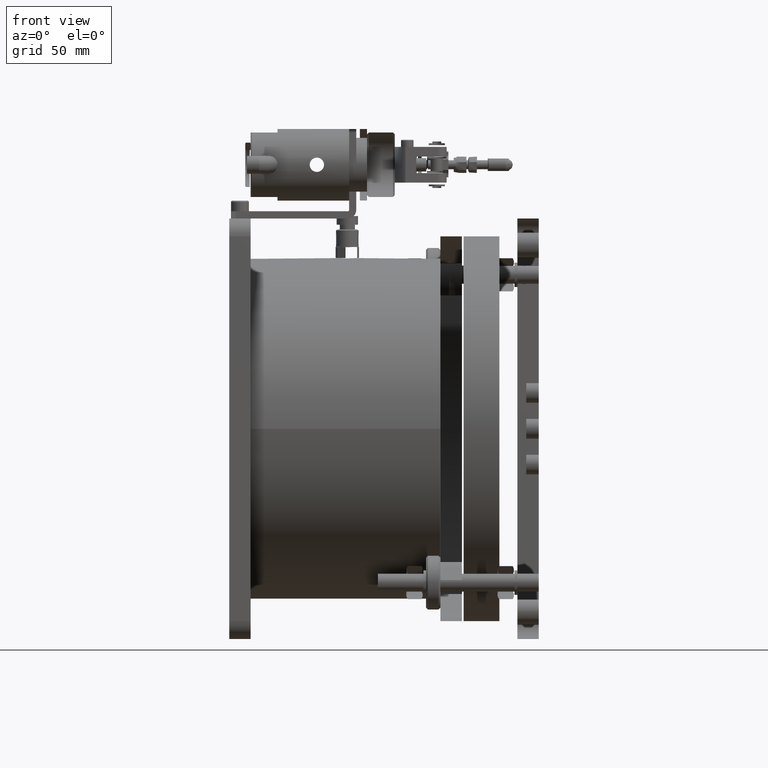
[diagram: clean part render]
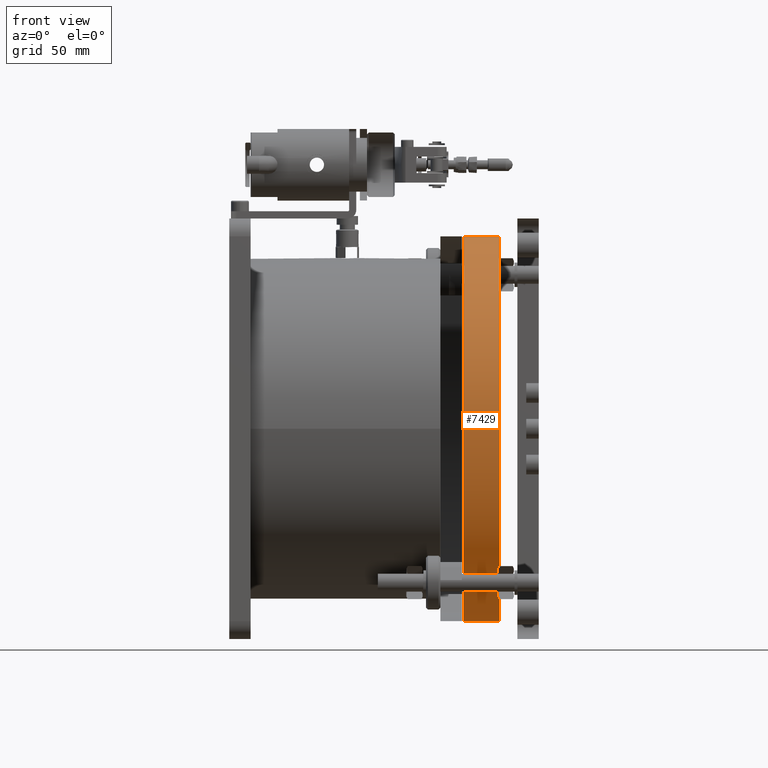
[diagram: same view with one face highlighted and labeled with its STEP entity id]
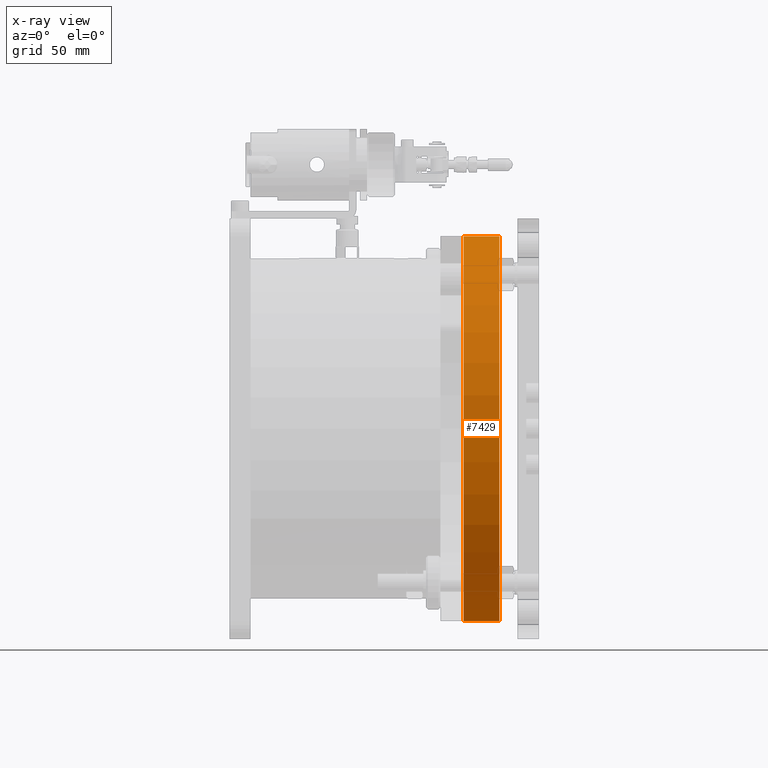
[diagram: x-ray of the same camera — body ghosted, the highlighted face saturated]
A machine part, front view. The second image highlights one B-rep face of the part: STEP entity #7429.
The next image is the same camera in x-ray: the body ghosted, the highlighted face saturated — about 0% of this face is hidden behind the body in this view.
In plain terms, the highlighted cylindrical surface (bore or boss wall) has radius 107.5 mm, axis along (1, 0, -0).
Its self-contained STEP definition (entity closure, byte-faithful):
#418 = FACE_OUTER_BOUND ( 'NONE', #22952, .T. ) ;
#1020 = EDGE_CURVE ( 'NONE', #7155, #7155, #13709, .T. ) ;
#2466 = DIRECTION ( 'NONE',  ( 1.000000000000000000, 2.276784909277186271E-17, -2.579363212391470952E-17 ) ) ;
#3212 = CARTESIAN_POINT ( 'NONE',  ( 532.4299721316714340, -6.648098980706942532E-12, 484.1094016609062010 ) ) ;
#3230 = ORIENTED_EDGE ( 'NONE', *, *, #1020, .T. ) ;
#5304 = EDGE_LOOP ( 'NONE', ( #16623 ) ) ;
#7155 = VERTEX_POINT ( 'NONE', #3212 ) ;
#7429 = ADVANCED_FACE ( 'NONE', ( #418, #9840 ), #17977, .T. ) ;
#9840 = FACE_OUTER_BOUND ( 'NONE', #5304, .T. ) ;
#9960 = DIRECTION ( 'NONE',  ( 0.000000000000000000, 0.000000000000000000, -1.000000000000000000 ) ) ;
#10572 = AXIS2_PLACEMENT_3D ( 'NONE', #13898, #2466, #9960 ) ;
#12665 = DIRECTION ( 'NONE',  ( 0.000000000000000000, 0.000000000000000000, -1.000000000000000000 ) ) ;
#13709 = CIRCLE ( 'NONE', #22267, 107.5000000000000426 ) ;
#13898 = CARTESIAN_POINT ( 'NONE',  ( 532.4299721316714340, -6.648098980706942532E-12, 591.6094016609062010 ) ) ;
#15128 = CIRCLE ( 'NONE', #16365, 107.5000000000000426 ) ;
#15233 = VERTEX_POINT ( 'NONE', #19201 ) ;
#16365 = AXIS2_PLACEMENT_3D ( 'NONE', #24282, #18305, #24536 ) ;
#16511 = EDGE_CURVE ( 'NONE', #15233, #15233, #15128, .T. ) ;
#16623 = ORIENTED_EDGE ( 'NONE', *, *, #16511, .T. ) ;
#16748 = DIRECTION ( 'NONE',  ( 1.000000000000000000, 2.276784909277186271E-17, -2.579363212391470952E-17 ) ) ;
#17977 = CYLINDRICAL_SURFACE ( 'NONE', #10572, 107.5000000000000426 ) ;
#18305 = DIRECTION ( 'NONE',  ( -1.000000000000000000, -2.276784909277186271E-17, 2.579363212391470952E-17 ) ) ;
#18647 = CARTESIAN_POINT ( 'NONE',  ( 532.4299721316714340, -6.648098980706942532E-12, 591.6094016609062010 ) ) ;
#19201 = CARTESIAN_POINT ( 'NONE',  ( 552.4299721316714340, -6.647643623725087088E-12, 484.1094016609062010 ) ) ;
#22267 = AXIS2_PLACEMENT_3D ( 'NONE', #18647, #16748, #12665 ) ;
#22952 = EDGE_LOOP ( 'NONE', ( #3230 ) ) ;
#24282 = CARTESIAN_POINT ( 'NONE',  ( 552.4299721316714340, -6.647643623725087088E-12, 591.6094016609062010 ) ) ;
#24536 = DIRECTION ( 'NONE',  ( 0.000000000000000000, 0.000000000000000000, -1.000000000000000000 ) ) ;